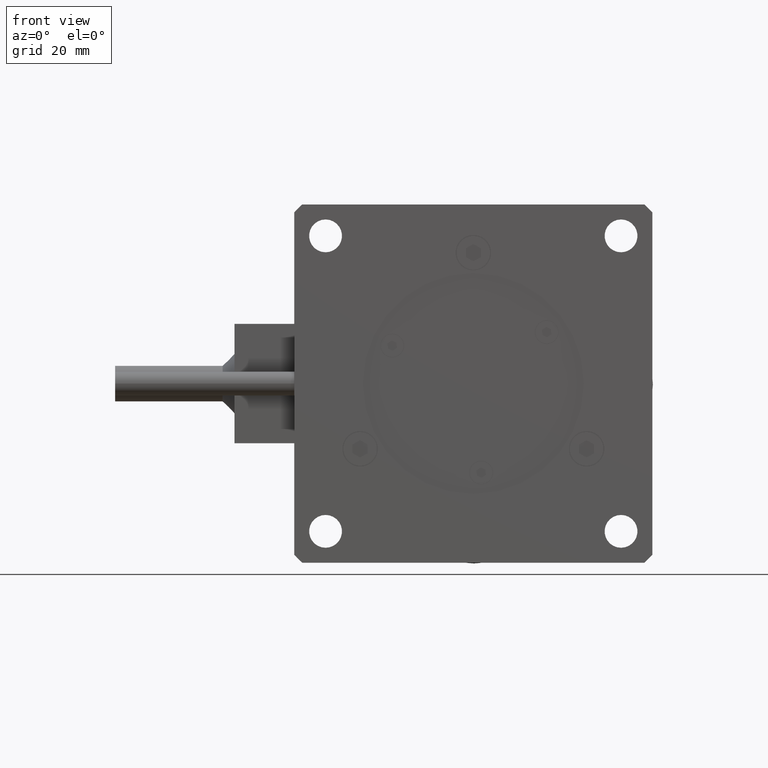
[diagram: clean part render]
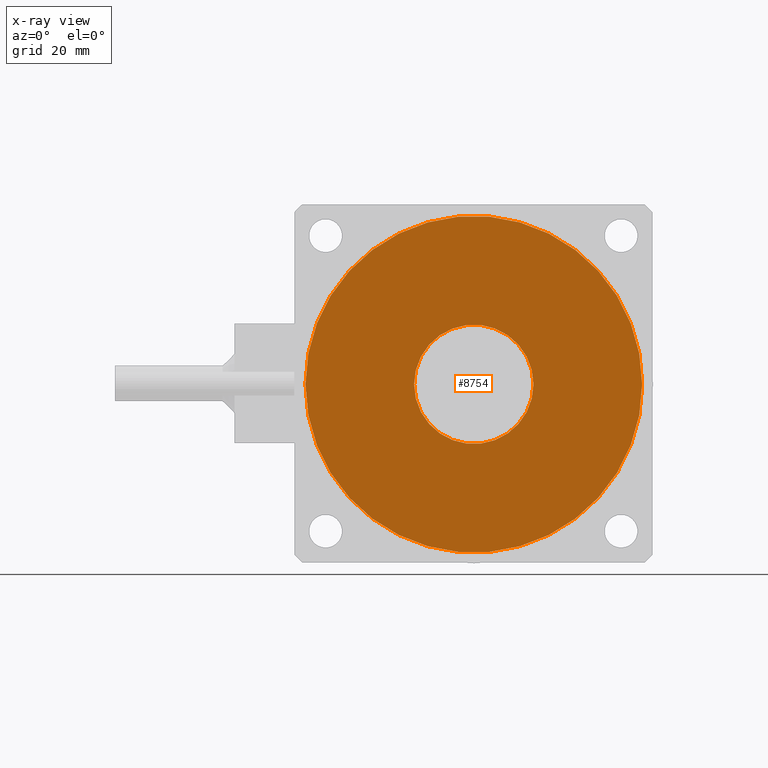
[diagram: x-ray — body ghosted, one internal face saturated and labeled with its STEP entity id]
A machine part, front view, then the same camera in x-ray: the body is ghosted and one INTERNAL B-rep face — a face not visible from any outside direction — is saturated and labeled: STEP entity #8754.
In plain terms, the highlighted planar face has unit normal (0, -1, -0).
Its self-contained STEP definition (entity closure, byte-faithful):
#94 = CIRCLE ( 'NONE', #7228, 10.00000000000000200 ) ;
#824 = AXIS2_PLACEMENT_3D ( 'NONE', #3549, #2740, #8636 ) ;
#1154 = CARTESIAN_POINT ( 'NONE',  ( 30.08123850349501200, 40.99547724548377700, 29.86812560160681300 ) ) ;
#1828 = ORIENTED_EDGE ( 'NONE', *, *, #6024, .T. ) ;
#1909 = CIRCLE ( 'NONE', #824, 28.19999999999999900 ) ;
#1937 = VERTEX_POINT ( 'NONE', #2867 ) ;
#1972 = VERTEX_POINT ( 'NONE', #5189 ) ;
#2539 = VERTEX_POINT ( 'NONE', #7875 ) ;
#2543 = DIRECTION ( 'NONE',  ( 9.957992501029598700E-017, -1.000000000000000000, -5.937638005323169000E-033 ) ) ;
#2740 = DIRECTION ( 'NONE',  ( 1.550910762415538600E-016, -1.000000000000000000, -1.273579337255762800E-032 ) ) ;
#2784 = CIRCLE ( 'NONE', #8202, 10.00000000000000200 ) ;
#2867 = CARTESIAN_POINT ( 'NONE',  ( 58.28123850349501800, 40.99547724548378400, 29.86812560160680600 ) ) ;
#3400 = EDGE_CURVE ( 'NONE', #7758, #2539, #94, .T. ) ;
#3549 = CARTESIAN_POINT ( 'NONE',  ( 30.08123850349501200, 40.99547724548377700, 29.86812560160681300 ) ) ;
#3569 = DIRECTION ( 'NONE',  ( -1.550910762415538600E-016, 1.000000000000000000, 1.273579337255762800E-032 ) ) ;
#3695 = DIRECTION ( 'NONE',  ( -1.000000000000000000, 0.0000000000000000000, 0.0000000000000000000 ) ) ;
#4087 = AXIS2_PLACEMENT_3D ( 'NONE', #1154, #2543, #6953 ) ;
#4181 = EDGE_CURVE ( 'NONE', #2539, #7758, #2784, .T. ) ;
#4242 = DIRECTION ( 'NONE',  ( -1.000000000000000000, 0.0000000000000000000, 0.0000000000000000000 ) ) ;
#4573 = FACE_OUTER_BOUND ( 'NONE', #7730, .T. ) ;
#4789 = CARTESIAN_POINT ( 'NONE',  ( 30.08123850349501200, 40.99547724548377700, 29.86812560160681300 ) ) ;
#4915 = DIRECTION ( 'NONE',  ( -1.000000000000000000, 0.0000000000000000000, 1.230300337572203600E-016 ) ) ;
#5189 = CARTESIAN_POINT ( 'NONE',  ( 1.881238503495013400, 40.99547724548377700, 29.86812560160681700 ) ) ;
#5272 = AXIS2_PLACEMENT_3D ( 'NONE', #4789, #7760, #4915 ) ;
#5526 = CIRCLE ( 'NONE', #5272, 28.19999999999999900 ) ;
#5846 = FACE_BOUND ( 'NONE', #8908, .T. ) ;
#6024 = EDGE_CURVE ( 'NONE', #1937, #1972, #1909, .T. ) ;
#6574 = EDGE_CURVE ( 'NONE', #1972, #1937, #5526, .T. ) ;
#6953 = DIRECTION ( 'NONE',  ( -1.000000000000000000, -9.957992501029598700E-017, 1.224646799147353000E-016 ) ) ;
#7066 = CARTESIAN_POINT ( 'NONE',  ( 30.08123850349501200, 40.99547724548377700, 29.86812560160681300 ) ) ;
#7228 = AXIS2_PLACEMENT_3D ( 'NONE', #7066, #3569, #4242 ) ;
#7730 = EDGE_LOOP ( 'NONE', ( #8409, #1828 ) ) ;
#7758 = VERTEX_POINT ( 'NONE', #7887 ) ;
#7760 = DIRECTION ( 'NONE',  ( 1.550910762415538600E-016, -1.000000000000000000, -1.273579337255762800E-032 ) ) ;
#7875 = CARTESIAN_POINT ( 'NONE',  ( 20.08123850349501200, 40.99547724548377700, 29.86812560160681300 ) ) ;
#7887 = CARTESIAN_POINT ( 'NONE',  ( 40.08123850349501500, 40.99547724548377700, 29.86812560160681000 ) ) ;
#8027 = CARTESIAN_POINT ( 'NONE',  ( 30.08123850349501200, 40.99547724548377700, 29.86812560160681300 ) ) ;
#8202 = AXIS2_PLACEMENT_3D ( 'NONE', #8027, #8743, #3695 ) ;
#8409 = ORIENTED_EDGE ( 'NONE', *, *, #6574, .T. ) ;
#8416 = PLANE ( 'NONE',  #4087 ) ;
#8636 = DIRECTION ( 'NONE',  ( -1.000000000000000000, 0.0000000000000000000, 1.230300337572203600E-016 ) ) ;
#8743 = DIRECTION ( 'NONE',  ( -1.550910762415538600E-016, 1.000000000000000000, 1.273579337255762800E-032 ) ) ;
#8754 = ADVANCED_FACE ( 'NONE', ( #4573, #5846 ), #8416, .T. ) ;
#8759 = ORIENTED_EDGE ( 'NONE', *, *, #4181, .T. ) ;
#8841 = ORIENTED_EDGE ( 'NONE', *, *, #3400, .T. ) ;
#8908 = EDGE_LOOP ( 'NONE', ( #8759, #8841 ) ) ;